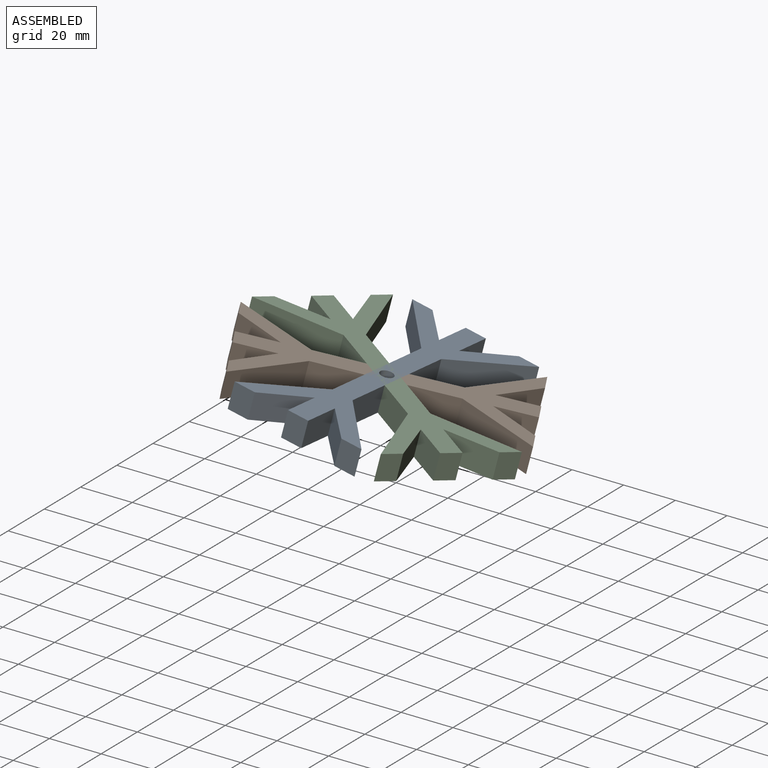
[diagram: assembled view]
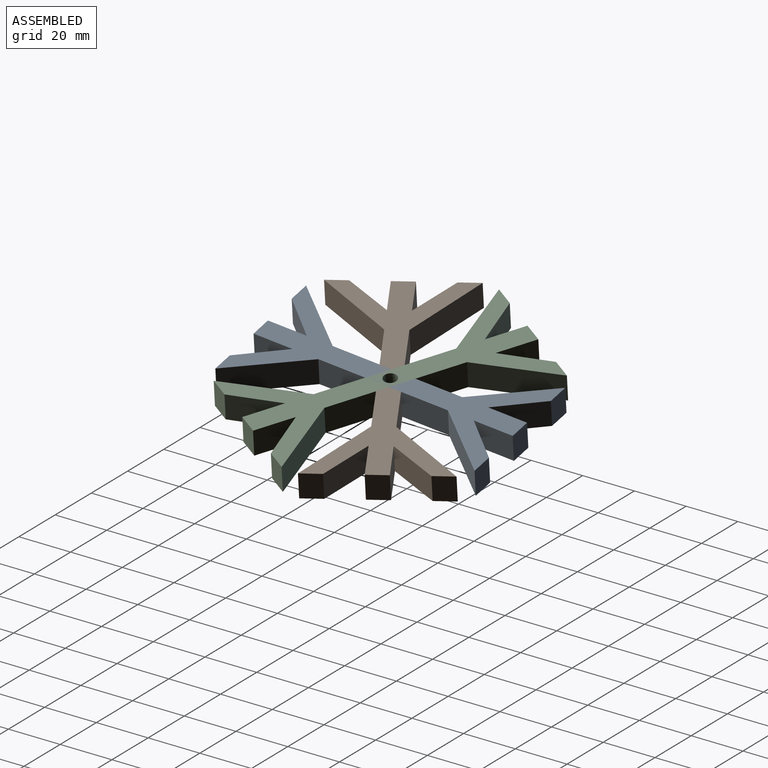
[diagram: assembled view, second angle]
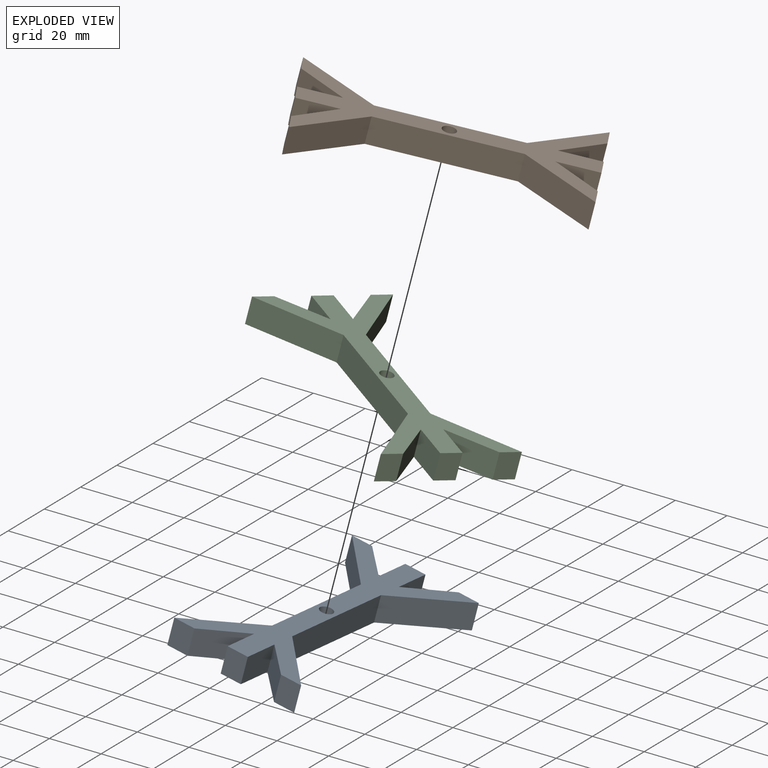
[diagram: exploded view]
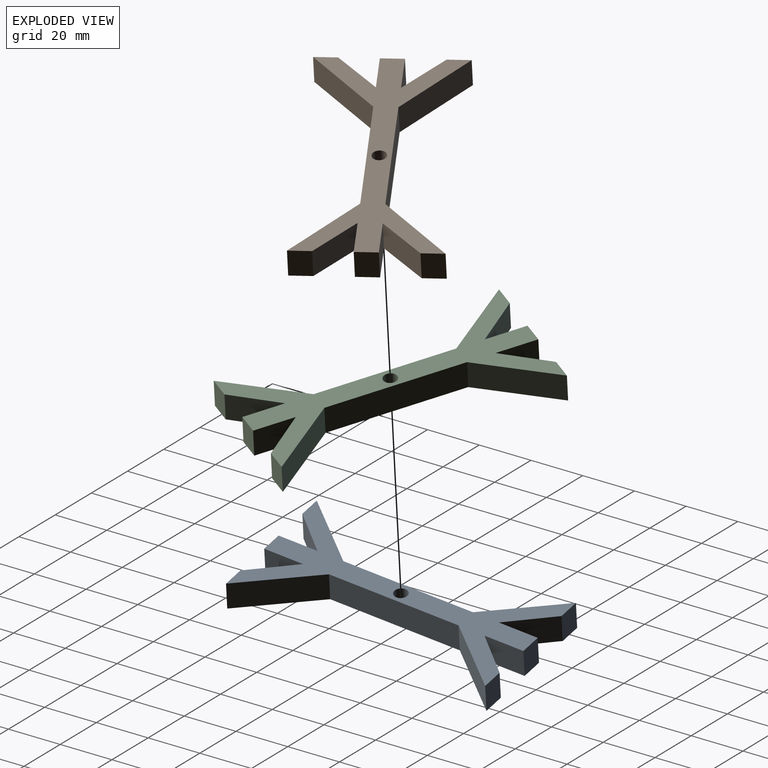
[diagram: exploded view, second angle]
ASSEMBLY  parts=3 mates=2
PART A: 23 faces, bbox 50.5x100x10 mm
  f0: plane 15x10mm, normal (-1,0,0), area 150mm2, adj f1,f19,f20,f21
  f1: plane 15x13.23mm, normal (0.75,0.66,0), area 200mm2, adj f0,f2,f20,f21
  f2: plane 10x8mm, normal (0,1,0), area 80mm2, adj f1,f3,f20,f21
  f3: plane 25x21.23mm, normal (-0.76,-0.65,0), area 328mm2, adj f2,f4,f20,f21
  f4: plane 50x10mm, normal (-1,0,0), area 500mm2, adj f3,f5,f20,f21
  f5: plane 25x21.23mm, normal (-0.76,0.65,0), area 328mm2, adj f4,f6,f20,f21
  f6: plane 10x8mm, normal (0,-1,0), area 80mm2, adj f5,f7,f20,f21
  f7: plane 15x13.23mm, normal (0.75,-0.66,0), area 200mm2, adj f6,f8,f20,f21
  f8: plane 15x10mm, normal (-1,0,0), area 150mm2, adj f7,f9,f20,f21
  f9: plane 10x8mm, normal (0,-1,0), area 80mm2, adj f8,f10,f20,f21
  f10: plane 14.98x10mm, normal (1,0,0), area 149.8mm2, adj f9,f11,f20,f21
  f11: plane 15x13.23mm, normal (-0.75,-0.66,0), area 200mm2, adj f10,f12,f20,f21
  f12: plane 10x8mm, normal (0,-1,0), area 80mm2, adj f11,f13,f20,f21
  f13: plane 25x21.23mm, normal (0.76,0.65,0), area 328mm2, adj f12,f14,f20,f21
  f14: plane 50x10mm, normal (1,0,0), area 500mm2, adj f13,f15,f20,f21
  f15: plane 25x21.23mm, normal (0.76,-0.65,0), area 328mm2, adj f14,f16,f20,f21
  f16: plane 10x8mm, normal (0,1,0), area 80mm2, adj f15,f17,f20,f21
  f17: plane 15x13.23mm, normal (-0.75,0.66,0), area 200mm2, adj f16,f18,f20,f21
  f18: plane 15x10mm, normal (1,0,0), area 150mm2, adj f17,f19,f20,f21
  f19: plane 10x8mm, normal (0,1,0), area 80mm2, adj f0,f18,f20,f21
  f20: plane 100x50.46mm, normal (0,0,1), area 1444.8mm2, adj f0,f1,f2,f3,f4,f5,f6,f7
  f21: plane 100x50.46mm, normal (0,0,-1), area 1444.8mm2, adj f0,f1,f2,f3,f4,f5,f6,f7
  f22: cylinder r=2.5mm len=10mm, axis (0,0,1), area 157.1mm2, adj f20,f21
PART B: same geometry as A
PART C: same geometry as A
PLACE A rot(axis=(-0.42,0.91,0),13deg) t=(-121.82,44.7,6.13)mm
PLACE B rot(axis=(-0.18,0.13,-0.98),61.3deg) t=(-98.25,31.83,2.45)mm
PLACE C rot(axis=(-0.13,0.01,-0.99),120.4deg) t=(-97.02,4.86,4.83)mm
MATE revolute A.f22 <-> C.f22  axis (0.2,0.1,0.97) through (-118.55,18.68,18.25)mm
MATE revolute C.f22 <-> B.f22  axis (0.2,0.1,0.97) through (-118.55,18.68,18.25)mm
